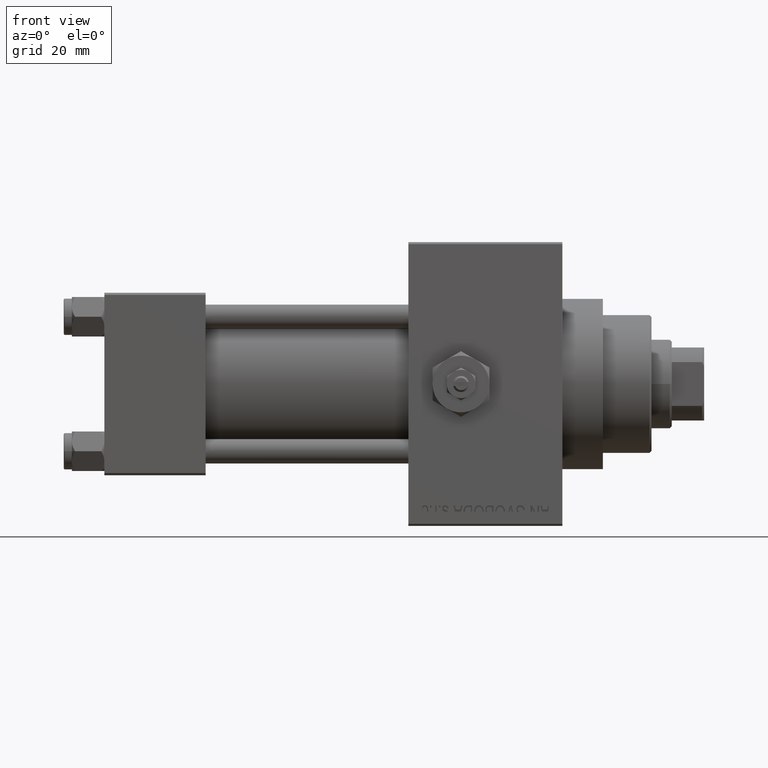
[diagram: clean part render]
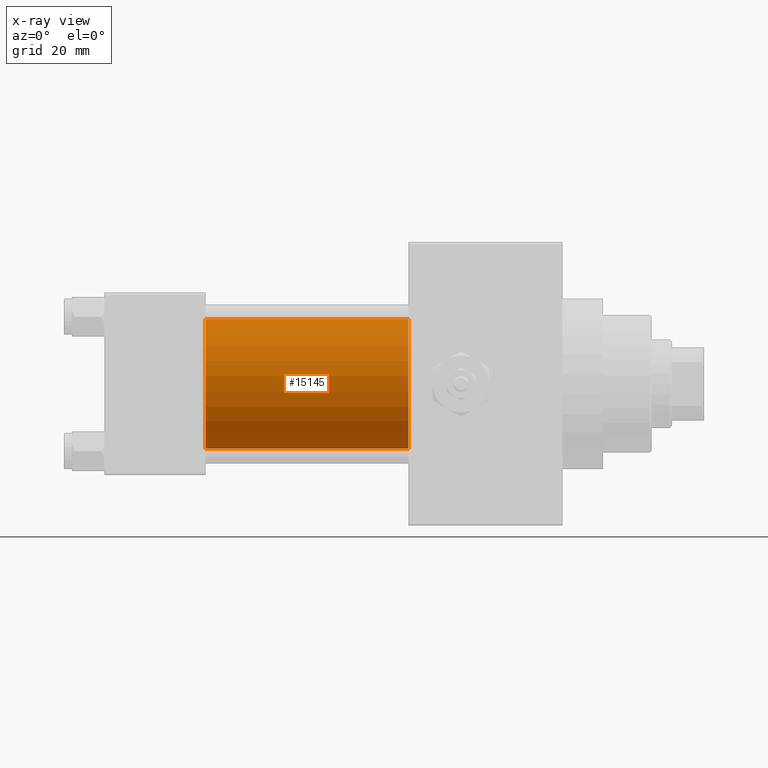
[diagram: x-ray — body ghosted, one internal face saturated and labeled with its STEP entity id]
A machine part, front view, then the same camera in x-ray: the body is ghosted and one INTERNAL B-rep face — a face not visible from any outside direction — is saturated and labeled: STEP entity #15145.
In plain terms, the highlighted cylindrical surface (partial cylindrical patch) has radius 16 mm, axis along (-1, -0, -0).
Its self-contained STEP definition (entity closure, byte-faithful):
#3400 = CARTESIAN_POINT ( 'NONE',  ( 75.00000000000001421, -6.426503353294456087E-16, -16.00000000000000000 ) ) ;
#5252 = AXIS2_PLACEMENT_3D ( 'NONE', #18380, #37364, #32942 ) ;
#5324 = EDGE_CURVE ( 'NONE', #33222, #37455, #10611, .T. ) ;
#5517 = CARTESIAN_POINT ( 'NONE',  ( 75.00000000000001421, -2.602085213965210642E-15, 16.00000000000000000 ) ) ;
#5733 = ORIENTED_EDGE ( 'NONE', *, *, #10622, .T. ) ;
#6900 = AXIS2_PLACEMENT_3D ( 'NONE', #40555, #27831, #13028 ) ;
#7352 = LINE ( 'NONE', #3400, #46725 ) ;
#10017 = ORIENTED_EDGE ( 'NONE', *, *, #5324, .F. ) ;
#10611 = CIRCLE ( 'NONE', #27953, 16.00000000000000000 ) ;
#10622 = EDGE_CURVE ( 'NONE', #43698, #35267, #27349, .T. ) ;
#11249 = EDGE_CURVE ( 'NONE', #43698, #33222, #30229, .T. ) ;
#11729 = DIRECTION ( 'NONE',  ( -1.000000000000000000, -0.000000000000000000, -0.000000000000000000 ) ) ;
#12421 = VECTOR ( 'NONE', #11729, 1000.000000000000000 ) ;
#12783 = CYLINDRICAL_SURFACE ( 'NONE', #6900, 16.00000000000000000 ) ;
#13028 = DIRECTION ( 'NONE',  ( 0.000000000000000000, 0.000000000000000000, 1.000000000000000000 ) ) ;
#13270 = FACE_OUTER_BOUND ( 'NONE', #24499, .T. ) ;
#15145 = ADVANCED_FACE ( 'NONE', ( #13270 ), #12783, .F. ) ;
#18380 = CARTESIAN_POINT ( 'NONE',  ( 75.00000000000001421, -2.602085213965210642E-15, 0.000000000000000000 ) ) ;
#18717 = DIRECTION ( 'NONE',  ( -1.000000000000000000, -0.000000000000000000, -0.000000000000000000 ) ) ;
#18978 = ORIENTED_EDGE ( 'NONE', *, *, #11249, .F. ) ;
#24499 = EDGE_LOOP ( 'NONE', ( #5733, #26021, #10017, #18978 ) ) ;
#26021 = ORIENTED_EDGE ( 'NONE', *, *, #33986, .T. ) ;
#26061 = CARTESIAN_POINT ( 'NONE',  ( 75.00000000000001421, -6.426503353294456087E-16, -16.00000000000000000 ) ) ;
#27349 = CIRCLE ( 'NONE', #5252, 16.00000000000000000 ) ;
#27831 = DIRECTION ( 'NONE',  ( -1.000000000000000000, -0.000000000000000000, -0.000000000000000000 ) ) ;
#27953 = AXIS2_PLACEMENT_3D ( 'NONE', #36950, #34233, #45315 ) ;
#30062 = CARTESIAN_POINT ( 'NONE',  ( 25.00000000000000000, -6.426503353294456087E-16, -16.00000000000000000 ) ) ;
#30229 = LINE ( 'NONE', #45729, #12421 ) ;
#32942 = DIRECTION ( 'NONE',  ( 0.000000000000000000, 0.000000000000000000, -1.000000000000000000 ) ) ;
#33222 = VERTEX_POINT ( 'NONE', #40194 ) ;
#33986 = EDGE_CURVE ( 'NONE', #35267, #37455, #7352, .T. ) ;
#34233 = DIRECTION ( 'NONE',  ( 1.000000000000000000, 0.000000000000000000, 0.000000000000000000 ) ) ;
#35267 = VERTEX_POINT ( 'NONE', #26061 ) ;
#36950 = CARTESIAN_POINT ( 'NONE',  ( 25.00000000000000000, -2.602085213965210642E-15, 0.000000000000000000 ) ) ;
#37364 = DIRECTION ( 'NONE',  ( 1.000000000000000000, 0.000000000000000000, 0.000000000000000000 ) ) ;
#37455 = VERTEX_POINT ( 'NONE', #30062 ) ;
#40194 = CARTESIAN_POINT ( 'NONE',  ( 25.00000000000000000, -2.602085213965210642E-15, 16.00000000000000000 ) ) ;
#40555 = CARTESIAN_POINT ( 'NONE',  ( 75.00000000000001421, -2.602085213965210642E-15, 0.000000000000000000 ) ) ;
#43698 = VERTEX_POINT ( 'NONE', #5517 ) ;
#45315 = DIRECTION ( 'NONE',  ( 0.000000000000000000, 0.000000000000000000, -1.000000000000000000 ) ) ;
#45729 = CARTESIAN_POINT ( 'NONE',  ( 75.00000000000001421, -2.602085213965210642E-15, 16.00000000000000000 ) ) ;
#46725 = VECTOR ( 'NONE', #18717, 1000.000000000000000 ) ;